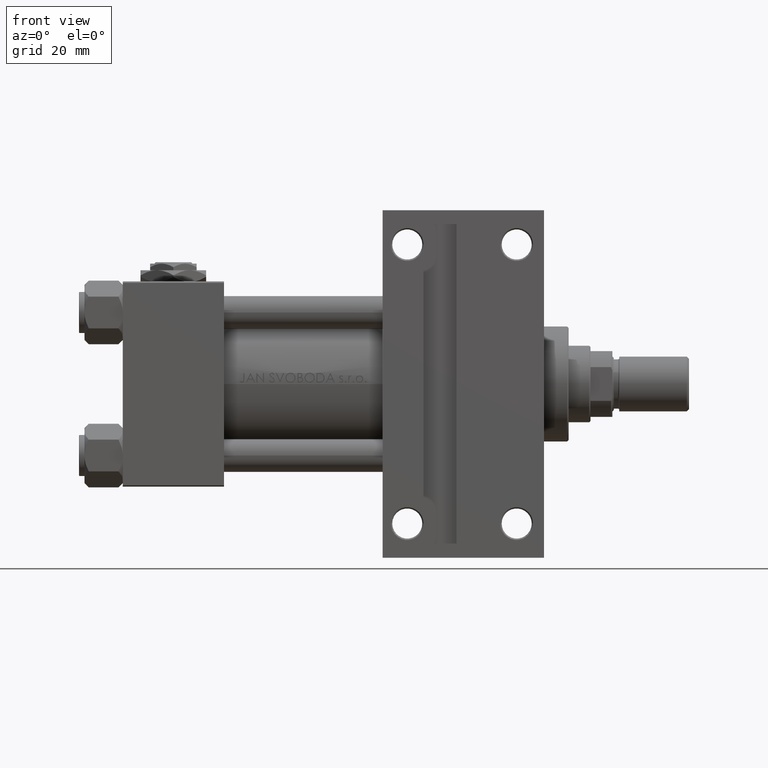
[diagram: clean part render]
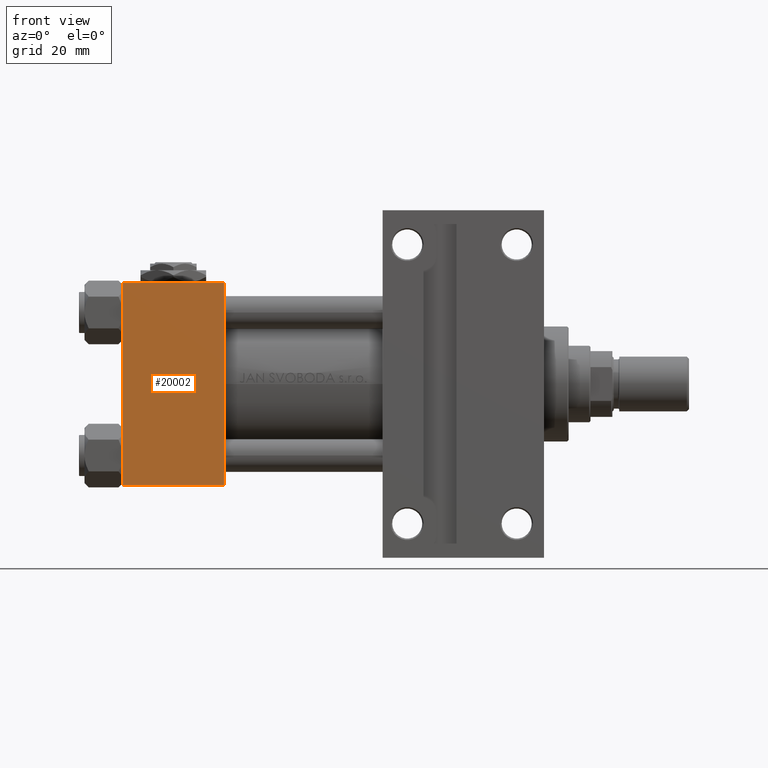
[diagram: same view with one face highlighted and labeled with its STEP entity id]
A machine part, front view. The second image highlights one B-rep face of the part: STEP entity #20002.
In plain terms, the highlighted planar face has unit normal (0, -1, -0).
Its self-contained STEP definition (entity closure, byte-faithful):
#132 = EDGE_LOOP ( 'NONE', ( #21794, #16114, #28353, #11249 ) ) ;
#3876 = CARTESIAN_POINT ( 'NONE',  ( 0.000000000000000000, 36.99999999999997868, -37.50000000000000000 ) ) ;
#5223 = EDGE_CURVE ( 'NONE', #24139, #28175, #19634, .T. ) ;
#8461 = CARTESIAN_POINT ( 'NONE',  ( 37.00000000000000000, 37.49999999999999289, -37.50000000000000000 ) ) ;
#11249 = ORIENTED_EDGE ( 'NONE', *, *, #28030, .T. ) ;
#11722 = DIRECTION ( 'NONE',  ( 1.000000000000000000, 0.000000000000000000, 0.000000000000000000 ) ) ;
#12686 = VERTEX_POINT ( 'NONE', #3876 ) ;
#12764 = DIRECTION ( 'NONE',  ( 0.000000000000000000, 9.251858538542972814E-17, -1.000000000000000000 ) ) ;
#12793 = VECTOR ( 'NONE', #29341, 1000.000000000000000 ) ;
#12896 = VERTEX_POINT ( 'NONE', #15316 ) ;
#14012 = VECTOR ( 'NONE', #27995, 1000.000000000000000 ) ;
#15316 = CARTESIAN_POINT ( 'NONE',  ( 0.000000000000000000, -37.00000000000002132, -37.50000000000000711 ) ) ;
#16114 = ORIENTED_EDGE ( 'NONE', *, *, #23454, .T. ) ;
#16333 = PLANE ( 'NONE',  #25867 ) ;
#19634 = LINE ( 'NONE', #8461, #14012 ) ;
#20002 = ADVANCED_FACE ( 'NONE', ( #27760 ), #16333, .T. ) ;
#20638 = DIRECTION ( 'NONE',  ( 0.000000000000000000, 1.000000000000000000, 9.251858538542972814E-17 ) ) ;
#20868 = LINE ( 'NONE', #48756, #47628 ) ;
#21794 = ORIENTED_EDGE ( 'NONE', *, *, #27873, .F. ) ;
#23454 = EDGE_CURVE ( 'NONE', #12686, #24139, #31019, .T. ) ;
#24139 = VERTEX_POINT ( 'NONE', #43362 ) ;
#25867 = AXIS2_PLACEMENT_3D ( 'NONE', #39909, #12764, #20638 ) ;
#27760 = FACE_OUTER_BOUND ( 'NONE', #132, .T. ) ;
#27873 = EDGE_CURVE ( 'NONE', #12686, #12896, #33903, .T. ) ;
#27995 = DIRECTION ( 'NONE',  ( 0.000000000000000000, -1.000000000000000000, -9.251858538542972814E-17 ) ) ;
#28030 = EDGE_CURVE ( 'NONE', #28175, #12896, #20868, .T. ) ;
#28175 = VERTEX_POINT ( 'NONE', #45932 ) ;
#28353 = ORIENTED_EDGE ( 'NONE', *, *, #5223, .T. ) ;
#29341 = DIRECTION ( 'NONE',  ( 0.000000000000000000, -1.000000000000000000, -9.251858538542972814E-17 ) ) ;
#31019 = LINE ( 'NONE', #46479, #36949 ) ;
#33903 = LINE ( 'NONE', #48875, #12793 ) ;
#36093 = DIRECTION ( 'NONE',  ( -1.000000000000000000, 0.000000000000000000, 0.000000000000000000 ) ) ;
#36949 = VECTOR ( 'NONE', #11722, 1000.000000000000000 ) ;
#39909 = CARTESIAN_POINT ( 'NONE',  ( 37.00000000000000000, 37.49999999999999289, -37.50000000000000000 ) ) ;
#43362 = CARTESIAN_POINT ( 'NONE',  ( 37.00000000000000000, 36.99999999999997868, -37.50000000000000000 ) ) ;
#45932 = CARTESIAN_POINT ( 'NONE',  ( 37.00000000000000000, -37.00000000000002132, -37.50000000000000711 ) ) ;
#46479 = CARTESIAN_POINT ( 'NONE',  ( 37.00000000000000000, 36.99999999999997868, -37.50000000000000000 ) ) ;
#47628 = VECTOR ( 'NONE', #36093, 1000.000000000000000 ) ;
#48756 = CARTESIAN_POINT ( 'NONE',  ( 0.000000000000000000, -37.00000000000002132, -37.50000000000000711 ) ) ;
#48875 = CARTESIAN_POINT ( 'NONE',  ( 0.000000000000000000, 37.49999999999999289, -37.50000000000000000 ) ) ;